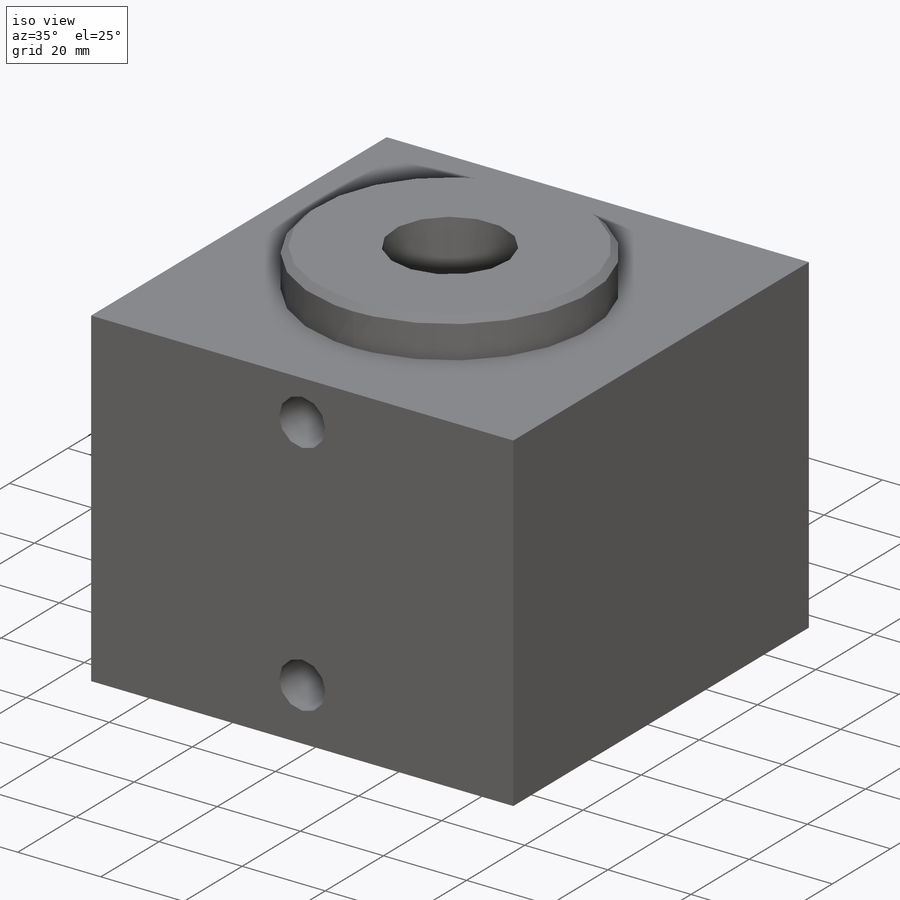
[diagram: iso view]
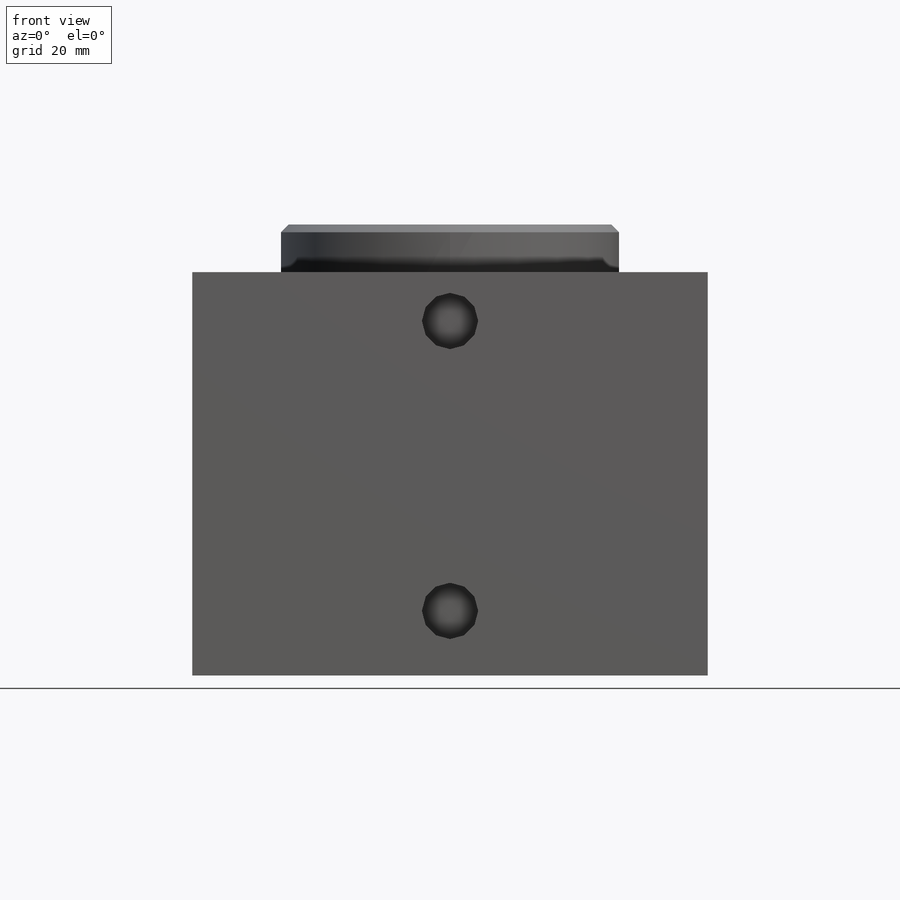
[diagram: front view]
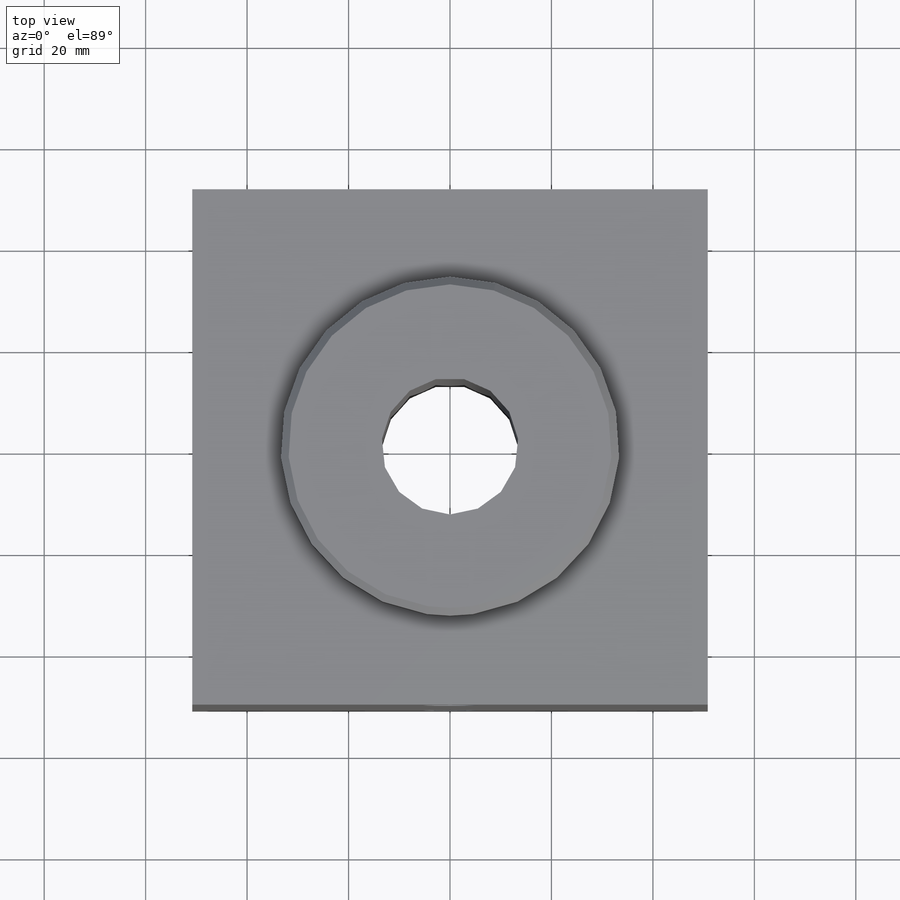
[diagram: top view]
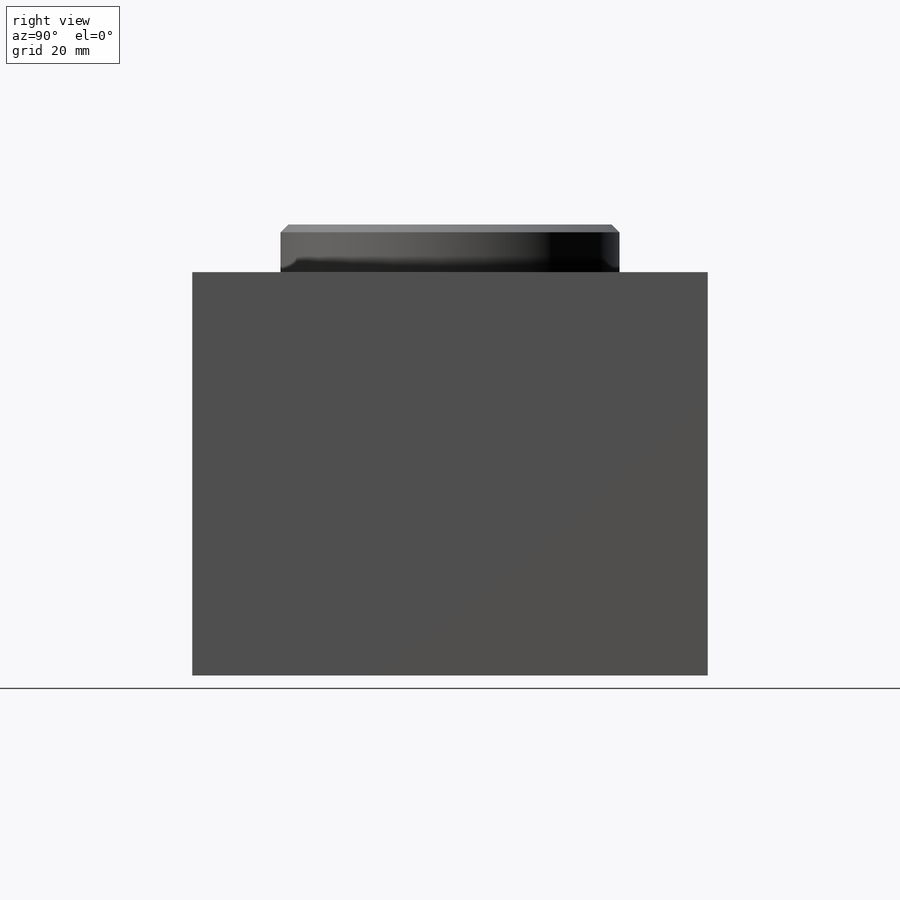
[diagram: right view]
SOLIDWORKS PART (.sldprt)
format: sldprt  version: not decoded by parser v0  size: 192,000 bytes
history: native  units: mm
features: sketch x6, extrude x2, cut_extrude x2, material x1, chamfer x1, hole x1 (+13 scaffold rows collapsed)
feature tree (26):
  scaffold x13  (default folders/planes/origin — collapsed)
  material  "Alloy Steel"
  sketch  "Sketch1"  dims[D1=101.6mm D2=50.8mm D3=101.6mm]
  extrude  "Extrude1"  Depth=79.502mm
  sketch  "Sketch2"  dims[D1=66.802mm]
  extrude  "Extrude2"  Depth=9.398mm
  chamfer  "Chamfer1"  Distance=1.524mm Angle=45deg
  sketch  "Sketch3"  dims[D1=26.9748mm]
  cut_extrude  "Cut-Extrude1"  [1 undecoded]
  sketch  "Sketch4"  dims[D1=11.0998mm D2=12.7mm D3=57.15mm]
  cut_extrude  "Cut-Extrude2"  Depth=12.7mm
  hole  "Hole1"  Diameter=7.9375mm Depth=12.7mm
  sketch  "Sketch6"  dims[D1=76.2mm D2=76.2mm]
  sketch  "Sketch5"  dims[Diameter=7.9375mm Depth=12.7mm]
decode coverage: 11 of 12 modeling features carry decoded parameters
note: 1 parameter value undecoded
note: suppression state not decoded; provenance and decode notes live in map.json
